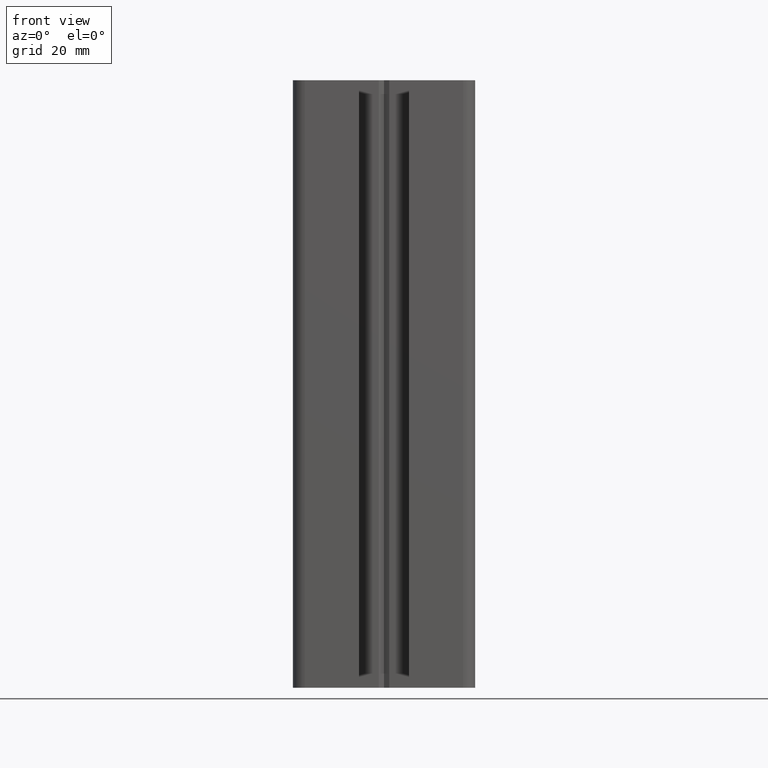
[diagram: clean part render]
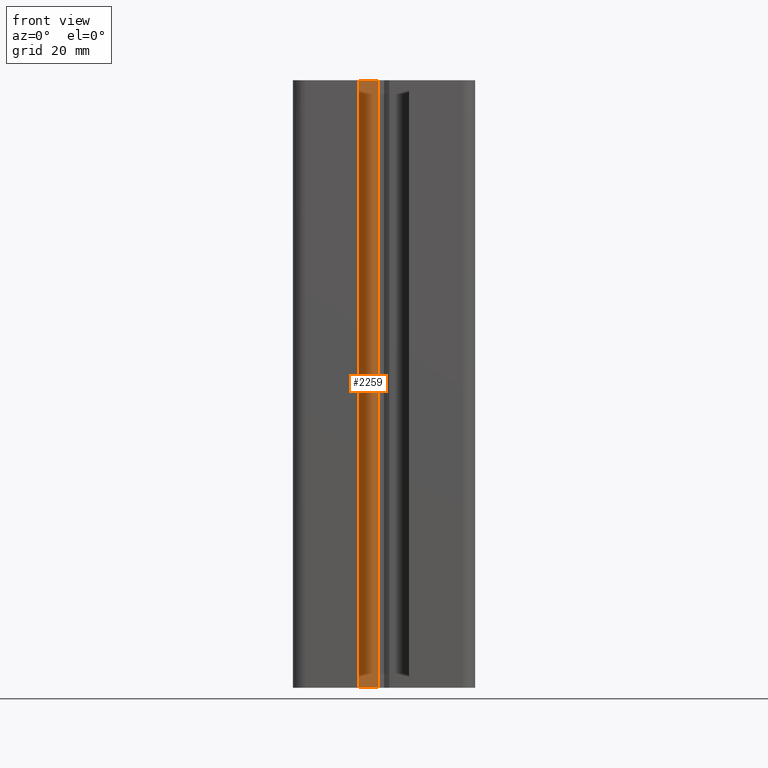
[diagram: same view with one face highlighted and labeled with its STEP entity id]
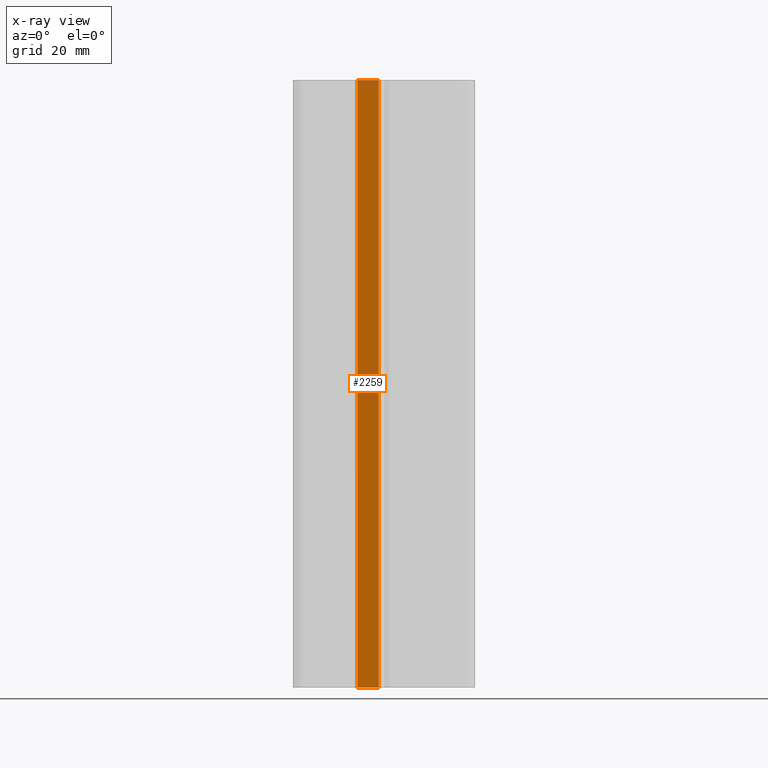
[diagram: x-ray of the same camera — body ghosted, the highlighted face saturated]
A machine part, front view. The second image highlights one B-rep face of the part: STEP entity #2259.
The next image is the same camera in x-ray: the body ghosted, the highlighted face saturated — about 0% of this face is hidden behind the body in this view.
In plain terms, the highlighted planar face has unit normal (0, 1, -0).
Its self-contained STEP definition (entity closure, byte-faithful):
#656 = VERTEX_POINT ( 'NONE', #4145 ) ;
#659 = VERTEX_POINT ( 'NONE', #4133 ) ;
#708 = EDGE_CURVE ( 'NONE', #656, #659, #4230, .T. ) ;
#1476 = VERTEX_POINT ( 'NONE', #5630 ) ;
#1508 = EDGE_CURVE ( 'NONE', #1525, #1476, #5681, .T. ) ;
#1525 = VERTEX_POINT ( 'NONE', #5705 ) ;
#2204 = ORIENTED_EDGE ( 'NONE', *, *, #2260, .F. ) ;
#2206 = ORIENTED_EDGE ( 'NONE', *, *, #1508, .T. ) ;
#2214 = EDGE_CURVE ( 'NONE', #656, #1525, #6867, .T. ) ;
#2245 = ORIENTED_EDGE ( 'NONE', *, *, #2214, .T. ) ;
#2257 = EDGE_LOOP ( 'NONE', ( #2206, #2204, #2262, #2245 ) ) ;
#2259 = ADVANCED_FACE ( 'NONE', ( #6885 ), #6929, .F. ) ;
#2260 = EDGE_CURVE ( 'NONE', #659, #1476, #6917, .T. ) ;
#2262 = ORIENTED_EDGE ( 'NONE', *, *, #708, .F. ) ;
#4133 = CARTESIAN_POINT ( 'NONE',  ( -0.8660254037844410400, -20.80000000000000400, 100.0000000000000000 ) ) ;
#4145 = CARTESIAN_POINT ( 'NONE',  ( -4.385786437626912000, -20.80000000000000400, 100.0000000000000000 ) ) ;
#4214 = CARTESIAN_POINT ( 'NONE',  ( -0.8660254037844410400, -20.80000000000000400, 100.0000000000000000 ) ) ;
#4230 = LINE ( 'NONE', #4214, #4268 ) ;
#4267 = DIRECTION ( 'NONE',  ( 1.000000000000000000, -0.0000000000000000000, -0.0000000000000000000 ) ) ;
#4268 = VECTOR ( 'NONE', #4267, 1000.000000000000000 ) ;
#5630 = CARTESIAN_POINT ( 'NONE',  ( -0.8660254037844410400, -20.80000000000000400, 0.0000000000000000000 ) ) ;
#5678 = DIRECTION ( 'NONE',  ( 1.000000000000000000, -0.0000000000000000000, -0.0000000000000000000 ) ) ;
#5679 = VECTOR ( 'NONE', #5678, 1000.000000000000000 ) ;
#5680 = CARTESIAN_POINT ( 'NONE',  ( -0.8660254037844410400, -20.80000000000000400, 0.0000000000000000000 ) ) ;
#5681 = LINE ( 'NONE', #5680, #5679 ) ;
#5705 = CARTESIAN_POINT ( 'NONE',  ( -4.385786437626912000, -20.80000000000000400, 0.0000000000000000000 ) ) ;
#6864 = DIRECTION ( 'NONE',  ( -0.0000000000000000000, -0.0000000000000000000, -1.000000000000000000 ) ) ;
#6865 = VECTOR ( 'NONE', #6864, 1000.000000000000000 ) ;
#6866 = CARTESIAN_POINT ( 'NONE',  ( -4.385786437626912000, -20.80000000000000400, 100.0000000000000000 ) ) ;
#6867 = LINE ( 'NONE', #6866, #6865 ) ;
#6885 = FACE_OUTER_BOUND ( 'NONE', #2257, .T. ) ;
#6914 = DIRECTION ( 'NONE',  ( -0.0000000000000000000, -0.0000000000000000000, -1.000000000000000000 ) ) ;
#6915 = VECTOR ( 'NONE', #6914, 1000.000000000000000 ) ;
#6916 = CARTESIAN_POINT ( 'NONE',  ( -0.8660254037844410400, -20.80000000000000400, 100.0000000000000000 ) ) ;
#6917 = LINE ( 'NONE', #6916, #6915 ) ;
#6920 = DIRECTION ( 'NONE',  ( 0.0000000000000000000, 0.0000000000000000000, 1.000000000000000000 ) ) ;
#6921 = DIRECTION ( 'NONE',  ( 0.0000000000000000000, 1.000000000000000000, -0.0000000000000000000 ) ) ;
#6929 = PLANE ( 'NONE',  #6937 ) ;
#6937 = AXIS2_PLACEMENT_3D ( 'NONE', #6941, #6921, #6920 ) ;
#6941 = CARTESIAN_POINT ( 'NONE',  ( -0.8660254037844410400, -20.80000000000000400, 100.0000000000000000 ) ) ;